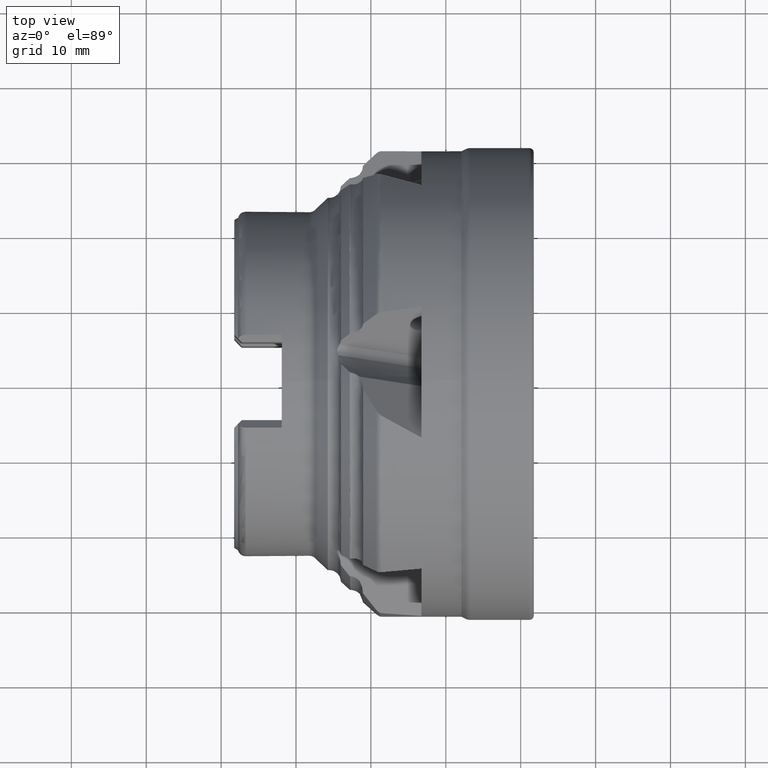
[diagram: clean part render]
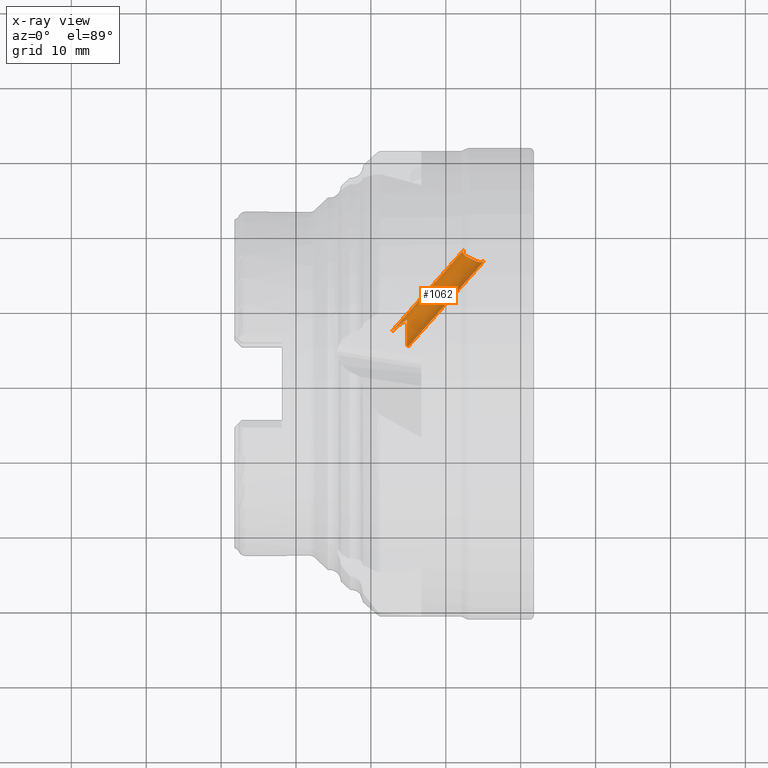
[diagram: x-ray — body ghosted, one internal face saturated and labeled with its STEP entity id]
A machine part, top view, then the same camera in x-ray: the body is ghosted and one INTERNAL B-rep face — a face not visible from any outside direction — is saturated and labeled: STEP entity #1062.
In plain terms, the highlighted cylindrical surface (edge-blend (fillet) strip) has radius 1.5 mm, axis along (0.6428, 0.7286, -0.2367).
Its self-contained STEP definition (entity closure, byte-faithful):
#328 = EDGE_LOOP ( 'NONE', ( #668, #669, #670, #671, #672, #673, #674, #675, #676 ) ) ;
#668 = ORIENTED_EDGE ( 'NONE', *, *, #1044, .T. ) ;
#669 = ORIENTED_EDGE ( 'NONE', *, *, #1045, .T. ) ;
#670 = ORIENTED_EDGE ( 'NONE', *, *, #1046, .F. ) ;
#671 = ORIENTED_EDGE ( 'NONE', *, *, #1047, .F. ) ;
#672 = ORIENTED_EDGE ( 'NONE', *, *, #1048, .F. ) ;
#673 = ORIENTED_EDGE ( 'NONE', *, *, #1049, .F. ) ;
#674 = ORIENTED_EDGE ( 'NONE', *, *, #1050, .T. ) ;
#675 = ORIENTED_EDGE ( 'NONE', *, *, #1070, .T. ) ;
#676 = ORIENTED_EDGE ( 'NONE', *, *, #1071, .T. ) ;
#745 = VERTEX_POINT ( 'NONE', #4837 ) ;
#748 = VERTEX_POINT ( 'NONE', #4840 ) ;
#749 = VERTEX_POINT ( 'NONE', #4841 ) ;
#750 = VERTEX_POINT ( 'NONE', #4842 ) ;
#751 = VERTEX_POINT ( 'NONE', #4843 ) ;
#756 = VERTEX_POINT ( 'NONE', #4848 ) ;
#757 = VERTEX_POINT ( 'NONE', #4849 ) ;
#805 = VERTEX_POINT ( 'NONE', #4897 ) ;
#807 = VERTEX_POINT ( 'NONE', #4899 ) ;
#1044 = EDGE_CURVE ( 'NONE', #745, #749, #5506, .T. ) ;
#1045 = EDGE_CURVE ( 'NONE', #749, #751, #5254, .T. ) ;
#1046 = EDGE_CURVE ( 'NONE', #750, #751, #10498, .T. ) ;
#1047 = EDGE_CURVE ( 'NONE', #805, #750, #10497, .T. ) ;
#1048 = EDGE_CURVE ( 'NONE', #748, #805, #10496, .T. ) ;
#1049 = EDGE_CURVE ( 'NONE', #807, #748, #5289, .T. ) ;
#1050 = EDGE_CURVE ( 'NONE', #807, #756, #5508, .T. ) ;
#1062 = ADVANCED_FACE ( 'NONE', ( #5338 ), #5342, .F. ) ;
#1070 = EDGE_CURVE ( 'NONE', #756, #757, #10495, .T. ) ;
#1071 = EDGE_CURVE ( 'NONE', #757, #745, #5727, .T. ) ;
#4837 = CARTESIAN_POINT ( 'NONE',  ( -15.20000000000002600, 4.891873443930353300, 8.401372829771483800 ) ) ;
#4840 = CARTESIAN_POINT ( 'NONE',  ( -7.590892168732059600, 17.78080291749172700, 5.550619276179825000 ) ) ;
#4841 = CARTESIAN_POINT ( 'NONE',  ( -14.95490912869176400, 4.899721973287309000, 9.091043814174852900 ) ) ;
#4842 = CARTESIAN_POINT ( 'NONE',  ( -5.358354266256601900, 16.17752919466132500, 4.607146757979226200 ) ) ;
#4843 = CARTESIAN_POINT ( 'NONE',  ( -4.833471256492741100, 16.37161289656865300, 5.363600500176285200 ) ) ;
#4848 = CARTESIAN_POINT ( 'NONE',  ( -17.22853318752490600, 6.818367200098878200, 8.822265509755201400 ) ) ;
#4849 = CARTESIAN_POINT ( 'NONE',  ( -15.19999999999999600, 8.395162655135354900, 7.337829651458305200 ) ) ;
#4897 = CARTESIAN_POINT ( 'NONE',  ( -7.564661091777446200, 17.20278719610171300, 4.600053653542094200 ) ) ;
#4899 = CARTESIAN_POINT ( 'NONE',  ( -17.20450235237757800, 6.884496602293557600, 9.091043814174852900 ) ) ;
#5230 = CARTESIAN_POINT ( 'NONE',  ( -14.95490912869176400, 4.899721973287309000, 9.091043814174852900 ) ) ;
#5252 = CARTESIAN_POINT ( 'NONE',  ( -5.240813876113424600, 16.18025811916174200, 4.716545686809875600 ) ) ;
#5253 = CARTESIAN_POINT ( 'NONE',  ( -5.358354266256601900, 16.17752919466132500, 4.607146757979226200 ) ) ;
#5254 = LINE ( 'NONE', #5230, #5504 ) ;
#5255 = CARTESIAN_POINT ( 'NONE',  ( -16.07970574053467100, 5.892109287790433700, 9.091043814174852900 ) ) ;
#5256 = DIRECTION ( 'NONE',  ( -0.6427876096865404700, -0.7285515593999926100, 0.2367207513702649900 ) ) ;
#5257 = DIRECTION ( 'NONE',  ( 0.7660444431189770100, -0.6113273447861679000, 0.1986322951667987300 ) ) ;
#5258 = DIRECTION ( 'NONE',  ( 0.6427876096865404700, 0.7285515593999925000, -0.2367207513702649600 ) ) ;
#5259 = CARTESIAN_POINT ( 'NONE',  ( -7.516793934359848000, 17.13634636775444500, 4.516188519484276600 ) ) ;
#5260 = CARTESIAN_POINT ( 'NONE',  ( -7.564661091777446200, 17.20278719610171300, 4.600053653542094200 ) ) ;
#5261 = CARTESIAN_POINT ( 'NONE',  ( -5.138061982310215800, 16.19752192786807400, 4.835828106892996000 ) ) ;
#5262 = CARTESIAN_POINT ( 'NONE',  ( -4.960418546040803500, 16.26262013547342600, 5.092478687442969900 ) ) ;
#5263 = CARTESIAN_POINT ( 'NONE',  ( -4.887582073332239000, 16.31028234290532100, 5.227669721135225000 ) ) ;
#5264 = CARTESIAN_POINT ( 'NONE',  ( -4.833471256492741100, 16.37161289656865300, 5.363600500176285200 ) ) ;
#5265 = CARTESIAN_POINT ( 'NONE',  ( -7.658885957014911500, 17.70373705664363900, 5.387831928598037800 ) ) ;
#5266 = CARTESIAN_POINT ( 'NONE',  ( -7.590892168732059600, 17.78080291749172700, 5.550619276179825000 ) ) ;
#5267 = CARTESIAN_POINT ( 'NONE',  ( -7.451243880532161700, 17.07990365553592900, 4.440602297190197100 ) ) ;
#5268 = CARTESIAN_POINT ( 'NONE',  ( -7.296273041347867600, 16.97394734872140300, 4.305721287923860000 ) ) ;
#5269 = CARTESIAN_POINT ( 'NONE',  ( -7.207184662526962900, 16.92523004914983200, 4.247342833558880300 ) ) ;
#5270 = CARTESIAN_POINT ( 'NONE',  ( -7.019611128813337200, 16.83171756811527700, 4.152906013681437100 ) ) ;
#5271 = CARTESIAN_POINT ( 'NONE',  ( -6.918942814695831200, 16.78584492359695800, 4.115689650443881600 ) ) ;
#5272 = CARTESIAN_POINT ( 'NONE',  ( -6.713321774417576800, 16.69278913122543200, 4.065089321649925800 ) ) ;
#5273 = CARTESIAN_POINT ( 'NONE',  ( -6.609345746505140600, 16.64595873138780400, 4.051712200487590300 ) ) ;
#5274 = CARTESIAN_POINT ( 'NONE',  ( -6.400147203470874400, 16.54891575067401600, 4.050521670800612200 ) ) ;
#5275 = CARTESIAN_POINT ( 'NONE',  ( -6.294795988998379800, 16.49856113020009500, 4.063250901108369300 ) ) ;
#5276 = CARTESIAN_POINT ( 'NONE',  ( -6.092860851299150200, 16.40207867980704400, 4.114260042986110500 ) ) ;
#5277 = CARTESIAN_POINT ( 'NONE',  ( -5.994237947376487500, 16.35505913201028200, 4.152731943318543500 ) ) ;
#5278 = CARTESIAN_POINT ( 'NONE',  ( -5.801822975123843500, 16.27219250775745300, 4.253102997349800200 ) ) ;
#5279 = CARTESIAN_POINT ( 'NONE',  ( -5.710373856796771900, 16.23743695371470600, 4.313563587785438400 ) ) ;
#5280 = CARTESIAN_POINT ( 'NONE',  ( -5.531436600805561100, 16.18899493230587800, 4.450613624969110800 ) ) ;
#5281 = CARTESIAN_POINT ( 'NONE',  ( -5.443718996593531800, 16.17554728951532500, 4.527694834709263800 ) ) ;
#5282 = CARTESIAN_POINT ( 'NONE',  ( -5.358354266256601900, 16.17752919466132500, 4.607146757979226200 ) ) ;
#5285 = CARTESIAN_POINT ( 'NONE',  ( -7.693078810441867300, 17.61615655400032300, 5.223171872950486800 ) ) ;
#5286 = CARTESIAN_POINT ( 'NONE',  ( -7.685589404204315600, 17.41736234703904200, 4.893096069345586900 ) ) ;
#5287 = CARTESIAN_POINT ( 'NONE',  ( -7.643460848079204300, 17.31216325611245900, 4.738113912026134000 ) ) ;
#5288 = CARTESIAN_POINT ( 'NONE',  ( -7.564661091777446200, 17.20278719610171300, 4.600053653542094200 ) ) ;
#5289 = LINE ( 'NONE', #5290, #5509 ) ;
#5290 = CARTESIAN_POINT ( 'NONE',  ( -17.20450235237757800, 6.884496602293557600, 9.091043814174852900 ) ) ;
#5291 = DIRECTION ( 'NONE',  ( 0.6427876096865404700, 0.7285515593999925000, -0.2367207513702649600 ) ) ;
#5295 = CARTESIAN_POINT ( 'NONE',  ( -16.07970574053467100, 5.892109287790433700, 9.091043814174852900 ) ) ;
#5296 = DIRECTION ( 'NONE',  ( -0.6427876096865404700, -0.7285515593999926100, 0.2367207513702649900 ) ) ;
#5297 = DIRECTION ( 'NONE',  ( 0.7660444431189770100, -0.6113273447861679000, 0.1986322951667987300 ) ) ;
#5338 = FACE_OUTER_BOUND ( 'NONE', #328, .T. ) ;
#5340 = DIRECTION ( 'NONE',  ( 0.6427876096865405800, 0.7285515593999926100, -0.2367207513702649900 ) ) ;
#5342 = CYLINDRICAL_SURFACE ( 'NONE', #5532, 1.500000000000001800 ) ;
#5343 = CARTESIAN_POINT ( 'NONE',  ( -16.07970574053467100, 5.892109287790433700, 9.091043814174852900 ) ) ;
#5345 = DIRECTION ( 'NONE',  ( -0.7498644078952704200, 0.6615915430020818900, 0.0000000000000000000 ) ) ;
#5380 = CARTESIAN_POINT ( 'NONE',  ( -16.92196857188968200, 7.128944188052241100, 8.582233292925369700 ) ) ;
#5381 = CARTESIAN_POINT ( 'NONE',  ( -17.22853318752490600, 6.818367200098878200, 8.822265509755201400 ) ) ;
#5382 = CARTESIAN_POINT ( 'NONE',  ( -15.19999999999999600, 8.395162655135354900, 7.337829651458305200 ) ) ;
#5383 = CARTESIAN_POINT ( 'NONE',  ( -16.60694854606304100, 7.418712909653848400, 8.331758882404853800 ) ) ;
#5384 = CARTESIAN_POINT ( 'NONE',  ( -15.93877300751894700, 7.947314963067138500, 7.829156543856177200 ) ) ;
#5385 = CARTESIAN_POINT ( 'NONE',  ( -15.58608227105484500, 8.186407119269587100, 7.576665487393083400 ) ) ;
#5386 = CARTESIAN_POINT ( 'NONE',  ( -15.19999999999999600, 8.395162655135354900, 7.337829651458305200 ) ) ;
#5388 = CARTESIAN_POINT ( 'NONE',  ( -15.20000000000002600, 7.207687579018015700, 6.836289043761491200 ) ) ;
#5389 = CARTESIAN_POINT ( 'NONE',  ( -15.20000000000002600, 5.643613919702266600, 7.311117061221241700 ) ) ;
#5390 = CARTESIAN_POINT ( 'NONE',  ( -15.20000000000002600, 4.891873443930353300, 8.401372829771483800 ) ) ;
#5504 = VECTOR ( 'NONE', #5258, 1000.000000000000100 ) ;
#5506 = CIRCLE ( 'NONE', #5507, 1.500000000000002700 ) ;
#5507 = AXIS2_PLACEMENT_3D ( 'NONE', #5255, #5256, #5257 ) ;
#5508 = CIRCLE ( 'NONE', #5511, 1.500000000000002700 ) ;
#5509 = VECTOR ( 'NONE', #5291, 1000.000000000000100 ) ;
#5511 = AXIS2_PLACEMENT_3D ( 'NONE', #5295, #5296, #5297 ) ;
#5532 = AXIS2_PLACEMENT_3D ( 'NONE', #5343, #5340, #5345 ) ;
#5727 =( BOUNDED_CURVE ( )  B_SPLINE_CURVE ( 3, ( #5382, #5388, #5389, #5390 ),
 .UNSPECIFIED., .F., .T. ) 
 B_SPLINE_CURVE_WITH_KNOTS ( ( 4, 4 ),
 ( 0.6384437830647681200, 2.442743159904507100 ),
 .UNSPECIFIED. ) 
 CURVE ( )  GEOMETRIC_REPRESENTATION_ITEM ( )  RATIONAL_B_SPLINE_CURVE ( ( 1.000000000000000000, 0.7466164163345998500, 0.7466164163345998500, 1.000000000000000000 ) ) 
 REPRESENTATION_ITEM ( '' )  );
#10495 = B_SPLINE_CURVE_WITH_KNOTS ( 'NONE', 3,
 ( #5381, #5380, #5383, #5384, #5385, #5386 ),
 .UNSPECIFIED., .F., .F.,
 ( 4, 2, 4 ),
 ( 1.894346629893874400E-017, 0.001483637151607745800, 0.002967274303215472900 ),
 .UNSPECIFIED. ) ;
#10496 = B_SPLINE_CURVE_WITH_KNOTS ( 'NONE', 3,
 ( #5266, #5265, #5285, #5286, #5287, #5288 ),
 .UNSPECIFIED., .F., .F.,
 ( 4, 2, 4 ),
 ( 0.005889807132436654900, 0.006458517159326020700, 0.007027227186215386500 ),
 .UNSPECIFIED. ) ;
#10497 = B_SPLINE_CURVE_WITH_KNOTS ( 'NONE', 3,
 ( #5260, #5259, #5267, #5268, #5269, #5270, #5271, #5272, #5273, #5274, #5275, #5276, #5277, #5278, #5279, #5280, #5281, #5282 ),
 .UNSPECIFIED., .F., .F.,
 ( 4, 2, 2, 2, 2, 2, 2, 2, 4 ),
 ( 2.453269466693398700E-018, 0.0003445353321541973000, 0.0006890706643083922200, 0.001033605996462587100, 0.001378141328616781800, 0.001722676660770976600, 0.002067211992925172000, 0.002411747325079366700, 0.002756282657233561500 ),
 .UNSPECIFIED. ) ;
#10498 = B_SPLINE_CURVE_WITH_KNOTS ( 'NONE', 3,
 ( #5253, #5252, #5261, #5262, #5263, #5264 ),
 .UNSPECIFIED., .F., .F.,
 ( 4, 2, 4 ),
 ( 0.0000000000000000000, 0.0004749925004927317100, 0.0009499850009854634300 ),
 .UNSPECIFIED. ) ;